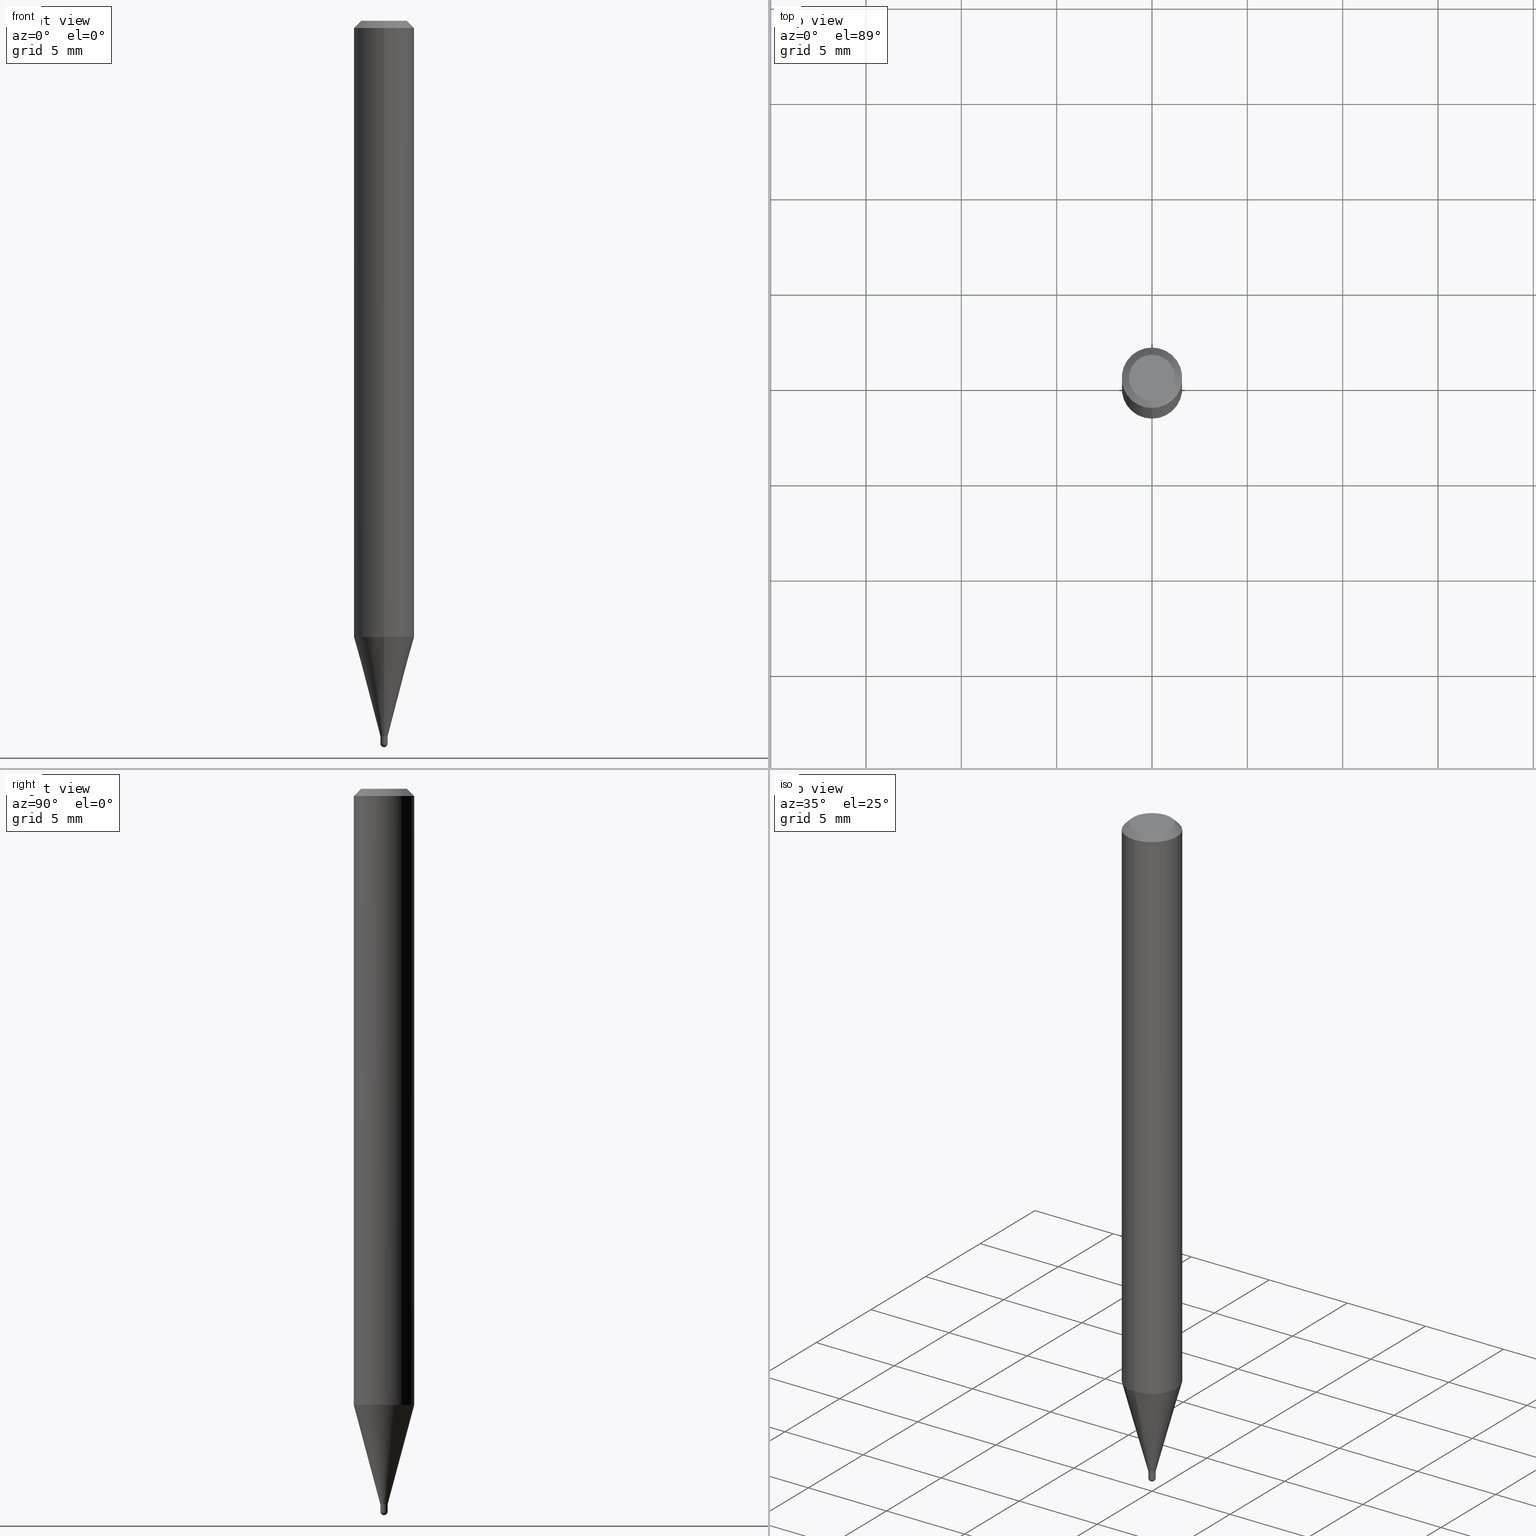
[diagram: canonical four-view strip — front | top / right | iso, engineering-drawing reading convention]
A machine part, canonical four-view strip (front | top / right | iso — engineering-drawing reading convention). The complete STEP part file that produces these views, byte-faithful:
ISO-10303-21;
HEADER;
FILE_DESCRIPTION (( 'STEP AP203' ),
    '1' );
FILE_NAME ('04327.STEP',
    '2024-03-08T18:38:57',
    ( '' ),
    ( '' ),
    'SwSTEP 2.0',
    'SolidWorks 2023',
    '' );
FILE_SCHEMA (( 'CONFIG_CONTROL_DESIGN' ));
ENDSEC;

DATA;
#1 =( CONVERSION_BASED_UNIT ( 'INCH', #356 ) LENGTH_UNIT ( ) NAMED_UNIT ( #144 ) );
#2 = LINE ( 'NONE', #393, #445 ) ;
#3 = AXIS2_PLACEMENT_3D ( 'NONE', #104, #40, #376 ) ;
#4 = ORIENTED_EDGE ( 'NONE', *, *, #425, .T. ) ;
#5 = LINE ( 'NONE', #482, #225 ) ;
#6 = ORIENTED_EDGE ( 'NONE', *, *, #380, .T. ) ;
#7 = PERSON_AND_ORGANIZATION ( #114, #35 ) ;
#8 = CARTESIAN_POINT ( 'NONE',  ( 0.007500000000000001457, -5.237222008264701142E-17, 3.657132581846952633E-31 ) ) ;
#9 = PERSON_AND_ORGANIZATION ( #114, #35 ) ;
#10 = DIRECTION ( 'NONE',  ( -2.445474706583121780E-29, 3.491472889137400899E-15, 1.000000000000000000 ) ) ;
#11 = ADVANCED_FACE ( 'NONE', ( #261 ), #297, .T. ) ;
#12 = CONICAL_SURFACE ( 'NONE', #34, 0.06250000000000000000, 0.7853981633974483900 ) ;
#13 = APPROVAL_ROLE ( '' ) ;
#14 =( NAMED_UNIT ( * ) SI_UNIT ( $, .STERADIAN. ) SOLID_ANGLE_UNIT ( ) );
#15 = DIRECTION ( 'NONE',  ( -2.445474706583121780E-29, 3.491472889137400899E-15, 1.000000000000000000 ) ) ;
#16 = SECURITY_CLASSIFICATION_LEVEL ( 'unclassified' ) ;
#17 = UNCERTAINTY_MEASURE_WITH_UNIT (LENGTH_MEASURE( 1.000000000000000082E-05 ), #1, 'distance_accuracy_value', 'NONE');
#18 = EDGE_LOOP ( 'NONE', ( #73, #417, #224, #446, #347 ) ) ;
#19 = EDGE_CURVE ( 'NONE', #304, #198, #90, .T. ) ;
#20 = CARTESIAN_POINT ( 'NONE',  ( 3.613188878976562681E-29, -5.158651193700511107E-15, -1.477500000000000258 ) ) ;
#21 = ORIENTED_EDGE ( 'NONE', *, *, #465, .F. ) ;
#22 = AXIS2_PLACEMENT_3D ( 'NONE', #100, #253, #293 ) ;
#23 = AXIS2_PLACEMENT_3D ( 'NONE', #30, #463, #296 ) ;
#24 = EDGE_LOOP ( 'NONE', ( #130, #163, #105, #80, #62 ) ) ;
#25 = CARTESIAN_POINT ( 'NONE',  ( 3.649862193231316236E-29, -5.211035898223394834E-15, -1.492499999999999938 ) ) ;
#26 = ORIENTED_EDGE ( 'NONE', *, *, #388, .T. ) ;
#27 = ORIENTED_EDGE ( 'NONE', *, *, #183, .F. ) ;
#28 = APPROVAL_PERSON_ORGANIZATION ( #98, #487, #13 ) ;
#29 = VERTEX_POINT ( 'NONE', #418 ) ;
#30 = CARTESIAN_POINT ( 'NONE',  ( 3.649220818514431555E-29, -5.211954383322755316E-15, -1.492499999999999938 ) ) ;
#31 = DIRECTION ( 'NONE',  ( -6.982962677686265133E-15, -1.000000000000000000, 0.000000000000000000 ) ) ;
#32 = CC_DESIGN_PERSON_AND_ORGANIZATION_ASSIGNMENT ( #58, #362, ( #169 ) ) ;
#33 = LINE ( 'NONE', #508, #218 ) ;
#34 = AXIS2_PLACEMENT_3D ( 'NONE', #510, #194, #474 ) ;
#35 = ORGANIZATION ( 'UNSPECIFIED', 'UNSPECIFIED', '' ) ;
#36 = DIRECTION ( 'NONE',  ( -2.445474706583121780E-29, 3.491472889137400899E-15, 1.000000000000000000 ) ) ;
#37 = ORIENTED_EDGE ( 'NONE', *, *, #465, .T. ) ;
#38 = DIRECTION ( 'NONE',  ( -2.445468806185136597E-29, 3.491481338843145583E-15, 1.000000000000000000 ) ) ;
#39 = EDGE_CURVE ( 'NONE', #466, #398, #55, .T. ) ;
#40 = DIRECTION ( 'NONE',  ( -1.000000000000000000, 6.982962677686265922E-15, -4.883557194083112340E-29 ) ) ;
#41 = ORIENTED_EDGE ( 'NONE', *, *, #153, .T. ) ;
#42 = FACE_OUTER_BOUND ( 'NONE', #24, .T. ) ;
#43 = ORIENTED_EDGE ( 'NONE', *, *, #342, .F. ) ;
#44 = CIRCLE ( 'NONE', #370, 0.06250000000000000000 ) ;
#45 = DIRECTION ( 'NONE',  ( -6.982962677686266711E-15, -1.000000000000000000, 0.000000000000000000 ) ) ;
#46 = VERTEX_POINT ( 'NONE', #219 ) ;
#47 = APPROVAL_ROLE ( '' ) ;
#48 = CARTESIAN_POINT ( 'NONE',  ( -5.237222008261413811E-17, -0.007500000000005628033, -1.477500000000000036 ) ) ;
#49 = EDGE_LOOP ( 'NONE', ( #6, #216, #125, #269 ) ) ;
#50 = DATE_AND_TIME ( #447, #75 ) ;
#51 = EDGE_CURVE ( 'NONE', #86, #387, #65, .T. ) ;
#52 = CARTESIAN_POINT ( 'NONE',  ( 4.440892098500625669E-16, 0.06250000000000000000, -2.182170555710875562E-16 ) ) ;
#53 = DIRECTION ( 'NONE',  ( -2.445468806185136877E-29, 3.491481338843145188E-15, 1.000000000000000000 ) ) ;
#54 = APPROVAL_STATUS ( 'not_yet_approved' ) ;
#55 = CIRCLE ( 'NONE', #443, 0.007500000000000001457 ) ;
#56 = FACE_OUTER_BOUND ( 'NONE', #103, .T. ) ;
#57 = CONICAL_SURFACE ( 'NONE', #299, 0.06250000000000000000, 0.7853981633974483900 ) ;
#58 = PERSON_AND_ORGANIZATION ( #114, #35 ) ;
#59 = CARTESIAN_POINT ( 'NONE',  ( 3.613188878976562121E-29, -5.158651193700510318E-15, -1.477500000000000036 ) ) ;
#60 = EDGE_CURVE ( 'NONE', #387, #439, #496, .T. ) ;
#61 = DIRECTION ( 'NONE',  ( 2.445474706583121780E-29, -3.491472889137400899E-15, -1.000000000000000000 ) ) ;
#62 = ORIENTED_EDGE ( 'NONE', *, *, #331, .F. ) ;
#63 = APPLICATION_CONTEXT ( 'configuration controlled 3d designs of mechanical parts and assemblies' ) ;
#64 = DIRECTION ( 'NONE',  ( -2.445474706583121780E-29, 3.491472889137400899E-15, 1.000000000000000000 ) ) ;
#65 = CIRCLE ( 'NONE', #132, 0.007500000000000469833 ) ;
#66 = CARTESIAN_POINT ( 'NONE',  ( 2.486899575160704889E-16, 0.007499999999995310765, -1.477500000000000036 ) ) ;
#67 = AXIS2_PLACEMENT_3D ( 'NONE', #186, #341, #499 ) ;
#68 = SECURITY_CLASSIFICATION ( '', '', #16 ) ;
#69 = DIRECTION ( 'NONE',  ( -4.937700262164674260E-15, -0.7071067811865632269, 0.7071067811865319186 ) ) ;
#70 = APPLICATION_PROTOCOL_DEFINITION ( 'international standard', 'config_control_design', 1994, #63 ) ;
#71 = EDGE_CURVE ( 'NONE', #150, #439, #315, .T. ) ;
#72 = EDGE_LOOP ( 'NONE', ( #116, #442, #481, #152 ) ) ;
#73 = ORIENTED_EDGE ( 'NONE', *, *, #256, .T. ) ;
#74 = AXIS2_PLACEMENT_3D ( 'NONE', #244, #135, #406 ) ;
#75 = LOCAL_TIME ( 13, 38, 57.00000000000000000, #455 ) ;
#76 = ORIENTED_EDGE ( 'NONE', *, *, #270, .F. ) ;
#77 = APPROVAL ( #54, 'UNSPECIFIED' ) ;
#78 = DIRECTION ( 'NONE',  ( 1.000000000000000000, -6.982962677686266711E-15, 4.876176775795935793E-29 ) ) ;
#79 = CARTESIAN_POINT ( 'NONE',  ( 3.613188878976562681E-29, -5.158651193700511107E-15, -1.477500000000000258 ) ) ;
#80 = ORIENTED_EDGE ( 'NONE', *, *, #325, .T. ) ;
#81 = VECTOR ( 'NONE', #448, 39.37007874015748143 ) ;
#82 = EDGE_CURVE ( 'NONE', #387, #86, #413, .T. ) ;
#83 = CARTESIAN_POINT ( 'NONE',  ( -0.007499999999999999722, -5.131559083000064325E-15, -1.477500000000000036 ) ) ;
#84 = VERTEX_POINT ( 'NONE', #461 ) ;
#85 = DIRECTION ( 'NONE',  ( 4.937700262164548042E-15, 0.7071067811865451302, -0.7071067811865499042 ) ) ;
#86 = VERTEX_POINT ( 'NONE', #66 ) ;
#87 = CARTESIAN_POINT ( 'NONE',  ( 3.613188878976562681E-29, -5.158651193700511107E-15, -1.477500000000000258 ) ) ;
#88 = EDGE_LOOP ( 'NONE', ( #43, #483, #404, #426 ) ) ;
#89 = COORDINATED_UNIVERSAL_TIME_OFFSET ( 5, 0, .BEHIND. ) ;
#90 = CIRCLE ( 'NONE', #434, 0.04749999999999999362 ) ;
#91 = AXIS2_PLACEMENT_3D ( 'NONE', #497, #300, #345 ) ;
#92 = DIRECTION ( 'NONE',  ( -6.982962677686266711E-15, -1.000000000000000000, 0.000000000000000000 ) ) ;
#93 = CC_DESIGN_PERSON_AND_ORGANIZATION_ASSIGNMENT ( #95, #452, ( #134 ) ) ;
#94 = ORIENTED_EDGE ( 'NONE', *, *, #221, .F. ) ;
#95 = PERSON_AND_ORGANIZATION ( #114, #35 ) ;
#96 = CARTESIAN_POINT ( 'NONE',  ( 4.440892098500938748E-16, 0.06249999999999995143, -0.01500000000000028394 ) ) ;
#97 = PLANE ( 'NONE',  #192 ) ;
#98 = PERSON_AND_ORGANIZATION ( #114, #35 ) ;
#99 = EDGE_CURVE ( 'NONE', #205, #439, #379, .T. ) ;
#100 = CARTESIAN_POINT ( 'NONE',  ( 3.649220818514431555E-29, -5.211954383322755316E-15, -1.492499999999999938 ) ) ;
#101 = AXIS2_PLACEMENT_3D ( 'NONE', #464, #147, #257 ) ;
#102 = DIRECTION ( 'NONE',  ( -6.982962677686265922E-15, -1.000000000000000000, 3.483106191921935554E-15 ) ) ;
#103 = EDGE_LOOP ( 'NONE', ( #491, #503 ) ) ;
#104 = CARTESIAN_POINT ( 'NONE',  ( 3.649220818514431555E-29, -5.211954383322755316E-15, -1.492499999999999938 ) ) ;
#105 = ORIENTED_EDGE ( 'NONE', *, *, #39, .T. ) ;
#106 = DIRECTION ( 'NONE',  ( -6.982962677686265133E-15, -1.000000000000000000, 0.000000000000000000 ) ) ;
#107 = VECTOR ( 'NONE', #128, 39.37007874015748143 ) ;
#108 = APPROVAL_PERSON_ORGANIZATION ( #275, #193, #366 ) ;
#109 = ADVANCED_FACE ( 'NONE', ( #220 ), #382, .F. ) ;
#110 = FACE_OUTER_BOUND ( 'NONE', #316, .T. ) ;
#111 = DIRECTION ( 'NONE',  ( -2.445474706583121780E-29, 3.491472889137400899E-15, 1.000000000000000000 ) ) ;
#112 = ADVANCED_FACE ( 'NONE', ( #110 ), #166, .F. ) ;
#113 = CARTESIAN_POINT ( 'NONE',  ( 3.613188878976562121E-29, -5.158651193700510318E-15, -1.477500000000000036 ) ) ;
#114 = PERSON ( 'UNSPECIFIED', 'UNSPECIFIED', 'UNSPECIFIED', ('UNSPECIFIED'), ('UNSPECIFIED'), ('UNSPECIFIED') ) ;
#115 = AXIS2_PLACEMENT_3D ( 'NONE', #87, #276, #360 ) ;
#116 = ORIENTED_EDGE ( 'NONE', *, *, #82, .T. ) ;
#117 = CARTESIAN_POINT ( 'NONE',  ( 5.329070518204423714E-17, 0.007499999999994821573, -1.492499999999999938 ) ) ;
#118 = LINE ( 'NONE', #199, #164 ) ;
#119 = CARTESIAN_POINT ( 'NONE',  ( 5.329070518204697350E-17, 0.007499999999995310765, -1.477500000000000036 ) ) ;
#120 = ORIENTED_EDGE ( 'NONE', *, *, #129, .F. ) ;
#121 = PRODUCT_RELATED_PRODUCT_CATEGORY ( 'detail', '', ( #295 ) ) ;
#122 = CONICAL_SURFACE ( 'NONE', #115, 0.006999999999999999278, 0.7853981633974739252 ) ;
#123 = AXIS2_PLACEMENT_3D ( 'NONE', #333, #488, #458 ) ;
#124 = CARTESIAN_POINT ( 'NONE',  ( 3.649220818514431555E-29, -5.211954383322755316E-15, -1.492499999999999938 ) ) ;
#125 = ORIENTED_EDGE ( 'NONE', *, *, #290, .F. ) ;
#126 = CARTESIAN_POINT ( 'NONE',  ( 4.364351673553919652E-16, 0.06249999999999995143, -0.01500000000000028394 ) ) ;
#127 = VERTEX_POINT ( 'NONE', #83 ) ;
#128 = DIRECTION ( 'NONE',  ( -2.445468806185136877E-29, 3.491481338843145188E-15, 1.000000000000000000 ) ) ;
#129 = EDGE_CURVE ( 'NONE', #86, #207, #318, .T. ) ;
#130 = ORIENTED_EDGE ( 'NONE', *, *, #441, .F. ) ;
#131 = APPLICATION_PROTOCOL_DEFINITION ( 'international standard', 'config_control_design', 1994, #354 ) ;
#132 = AXIS2_PLACEMENT_3D ( 'NONE', #113, #337, #106 ) ;
#133 = AXIS2_PLACEMENT_3D ( 'NONE', #170, #208, #408 ) ;
#134 = PRODUCT_DEFINITION_FORMATION_WITH_SPECIFIED_SOURCE ( 'ANY', '', #295, .NOT_KNOWN. ) ;
#135 = DIRECTION ( 'NONE',  ( -2.445468806185136597E-29, 3.491481338843145583E-15, 1.000000000000000000 ) ) ;
#136 = EDGE_CURVE ( 'NONE', #260, #150, #33, .T. ) ;
#137 = PERSON_AND_ORGANIZATION_ROLE ( 'design_owner' ) ;
#138 = CARTESIAN_POINT ( 'NONE',  ( -0.007500000000000001457, 5.329070518200752429E-17, -3.689201317691179704E-31 ) ) ;
#139 = SHAPE_DEFINITION_REPRESENTATION ( #309, #319 ) ;
#140 = SPHERICAL_SURFACE ( 'NONE', #22, 0.007500000000000063040 ) ;
#141 = AXIS2_PLACEMENT_3D ( 'NONE', #124, #233, #476 ) ;
#142 = CC_DESIGN_APPROVAL ( #487, ( #68 ) ) ;
#143 = EDGE_LOOP ( 'NONE', ( #27, #4, #475, #422 ) ) ;
#144 = DIMENSIONAL_EXPONENTS ( 1.000000000000000000, 0.000000000000000000, 0.000000000000000000, 0.000000000000000000, 0.000000000000000000, 0.000000000000000000, 0.000000000000000000 ) ;
#145 = CARTESIAN_POINT ( 'NONE',  ( -5.237222008264932254E-17, -0.007500000000000333657, 2.618604666853167253E-17 ) ) ;
#146 = SPHERICAL_SURFACE ( 'NONE', #23, 0.007500000000000063040 ) ;
#147 = DIRECTION ( 'NONE',  ( -2.445474706583121780E-29, 3.491472889137400899E-15, 1.000000000000000000 ) ) ;
#148 = ADVANCED_FACE ( 'NONE', ( #314 ), #504, .T. ) ;
#149 = DIRECTION ( 'NONE',  ( 0.000000000000000000, 0.000000000000000000, 1.000000000000000000 ) ) ;
#150 = VERTEX_POINT ( 'NONE', #310 ) ;
#151 = AXIS2_PLACEMENT_3D ( 'NONE', #59, #485, #215 ) ;
#152 = ORIENTED_EDGE ( 'NONE', *, *, #217, .F. ) ;
#153 = EDGE_CURVE ( 'NONE', #198, #355, #472, .T. ) ;
#154 = CYLINDRICAL_SURFACE ( 'NONE', #494, 0.007500000000000333657 ) ;
#155 = DIRECTION ( 'NONE',  ( 1.000000000000000000, -6.982962677686266711E-15, 0.000000000000000000 ) ) ;
#156 = CARTESIAN_POINT ( 'NONE',  ( 3.649862193231316236E-29, -5.211035898223394834E-15, -1.492499999999999938 ) ) ;
#157 = CIRCLE ( 'NONE', #123, 0.007500000000000001457 ) ;
#158 = DIRECTION ( 'NONE',  ( 1.839019923739649619E-15, 0.2588190451025318972, 0.9659258262890650926 ) ) ;
#159 = CARTESIAN_POINT ( 'NONE',  ( 0.000000000000000000, 0.000000000000000000, 0.000000000000000000 ) ) ;
#160 = ADVANCED_FACE ( 'NONE', ( #390 ), #12, .T. ) ;
#161 = ORIENTED_EDGE ( 'NONE', *, *, #82, .F. ) ;
#162 = DIRECTION ( 'NONE',  ( -4.851104656540964275E-15, -0.7071067811865500152, -0.7071067811865450192 ) ) ;
#163 = ORIENTED_EDGE ( 'NONE', *, *, #420, .T. ) ;
#164 = VECTOR ( 'NONE', #229, 39.37007874015748854 ) ;
#165 = LOCAL_TIME ( 13, 38, 57.00000000000000000, #89 ) ;
#166 = PLANE ( 'NONE',  #232 ) ;
#167 = ORIENTED_EDGE ( 'NONE', *, *, #136, .F. ) ;
#168 = DATE_TIME_ROLE ( 'creation_date' ) ;
#169 = PRODUCT_DEFINITION ( 'UNKNOWN', '', #134, #338 ) ;
#170 = CARTESIAN_POINT ( 'NONE',  ( 0.000000000000000000, 0.000000000000000000, 0.000000000000000000 ) ) ;
#171 = ORIENTED_EDGE ( 'NONE', *, *, #99, .T. ) ;
#172 = PERSON_AND_ORGANIZATION ( #114, #35 ) ;
#173 = CYLINDRICAL_SURFACE ( 'NONE', #133, 0.007500000000000001457 ) ;
#174 = DIRECTION ( 'NONE',  ( 2.438088387897960049E-29, -3.491481338843145188E-15, -1.000000000000000000 ) ) ;
#175 = CIRCLE ( 'NONE', #74, 0.007499999999999999722 ) ;
#176 = FACE_OUTER_BOUND ( 'NONE', #407, .T. ) ;
#177 = DATE_AND_TIME ( #374, #358 ) ;
#178 = ORIENTED_EDGE ( 'NONE', *, *, #217, .T. ) ;
#179 = AXIS2_PLACEMENT_3D ( 'NONE', #429, #111, #184 ) ;
#180 = VECTOR ( 'NONE', #15, 39.37007874015748143 ) ;
#181 = LOCAL_TIME ( 13, 38, 57.00000000000000000, #288 ) ;
#182 = ORIENTED_EDGE ( 'NONE', *, *, #221, .T. ) ;
#183 = EDGE_CURVE ( 'NONE', #278, #272, #435, .T. ) ;
#184 = DIRECTION ( 'NONE',  ( -6.982962677686265922E-15, -1.000000000000000000, 3.491472889137400899E-15 ) ) ;
#185 = DIRECTION ( 'NONE',  ( -2.445468806185136597E-29, 3.491481338843145583E-15, 1.000000000000000000 ) ) ;
#186 = CARTESIAN_POINT ( 'NONE',  ( 0.000000000000000000, 0.000000000000000000, 0.000000000000000000 ) ) ;
#187 = ORIENTED_EDGE ( 'NONE', *, *, #301, .F. ) ;
#188 = AXIS2_PLACEMENT_3D ( 'NONE', #421, #381, #423 ) ;
#189 = CARTESIAN_POINT ( 'NONE',  ( 1.601801471686390664E-45, -2.286936927672258869E-31, -6.550063541341908739E-17 ) ) ;
#190 = DIRECTION ( 'NONE',  ( 2.445474706583121500E-29, -3.491472889137400899E-15, -1.000000000000000000 ) ) ;
#191 = CARTESIAN_POINT ( 'NONE',  ( -4.888073874376772901E-17, -0.007000000000005158346, -1.477500000000000258 ) ) ;
#192 = AXIS2_PLACEMENT_3D ( 'NONE', #20, #209, #254 ) ;
#193 = APPROVAL ( #243, 'UNSPECIFIED' ) ;
#194 = DIRECTION ( 'NONE',  ( 2.445474706583121780E-29, -3.491472889137400899E-15, -1.000000000000000000 ) ) ;
#195 = MANIFOLD_SOLID_BREP ( 'Body-Move/Copy2[2]', #239 ) ;
#196 = FACE_OUTER_BOUND ( 'NONE', #49, .T. ) ;
#197 = FACE_OUTER_BOUND ( 'NONE', #322, .T. ) ;
#198 = VERTEX_POINT ( 'NONE', #271 ) ;
#199 = CARTESIAN_POINT ( 'NONE',  ( -5.237222008261413811E-17, -0.007500000000005628033, -1.477500000000000036 ) ) ;
#200 = ADVANCED_FACE ( 'NONE', ( #42 ), #430, .T. ) ;
#201 = ORIENTED_EDGE ( 'NONE', *, *, #19, .T. ) ;
#202 = AXIS2_PLACEMENT_3D ( 'NONE', #159, #308, #480 ) ;
#203 = CC_DESIGN_SECURITY_CLASSIFICATION ( #68, ( #134 ) ) ;
#204 = DIRECTION ( 'NONE',  ( -6.982962677686265922E-15, -1.000000000000000000, 4.370956789862821150E-15 ) ) ;
#205 = VERTEX_POINT ( 'NONE', #191 ) ;
#206 = LINE ( 'NONE', #227, #180 ) ;
#207 = VERTEX_POINT ( 'NONE', #438 ) ;
#208 = DIRECTION ( 'NONE',  ( -2.445468806185136597E-29, 3.491481338843145583E-15, 1.000000000000000000 ) ) ;
#209 = DIRECTION ( 'NONE',  ( -2.445474706583121500E-29, 3.491472889137400899E-15, 1.000000000000000000 ) ) ;
#210 = AXIS2_PLACEMENT_3D ( 'NONE', #235, #38, #78 ) ;
#211 = CIRCLE ( 'NONE', #289, 0.007500000000000001457 ) ;
#212 = CC_DESIGN_PERSON_AND_ORGANIZATION_ASSIGNMENT ( #7, #415, ( #134 ) ) ;
#213 = COORDINATED_UNIVERSAL_TIME_OFFSET ( 5, 0, .BEHIND. ) ;
#214 = FACE_OUTER_BOUND ( 'NONE', #237, .T. ) ;
#215 = DIRECTION ( 'NONE',  ( -6.982962677686265133E-15, -1.000000000000000000, 0.000000000000000000 ) ) ;
#216 = ORIENTED_EDGE ( 'NONE', *, *, #136, .T. ) ;
#217 = EDGE_CURVE ( 'NONE', #387, #29, #118, .T. ) ;
#218 = VECTOR ( 'NONE', #268, 39.37007874015748143 ) ;
#219 = CARTESIAN_POINT ( 'NONE',  ( 0.007499999999999999722, -5.211035898223394834E-15, -1.477500000000000036 ) ) ;
#220 = FACE_OUTER_BOUND ( 'NONE', #437, .T. ) ;
#221 = EDGE_CURVE ( 'NONE', #198, #304, #486, .T. ) ;
#222 = ORIENTED_EDGE ( 'NONE', *, *, #270, .T. ) ;
#223 = DIRECTION ( 'NONE',  ( -6.982962677686265922E-15, -1.000000000000000000, 3.491472889137400899E-15 ) ) ;
#224 = ORIENTED_EDGE ( 'NONE', *, *, #230, .F. ) ;
#225 = VECTOR ( 'NONE', #281, 39.37007874015748143 ) ;
#226 =( GEOMETRIC_REPRESENTATION_CONTEXT ( 3 ) GLOBAL_UNCERTAINTY_ASSIGNED_CONTEXT ( ( #17 ) ) GLOBAL_UNIT_ASSIGNED_CONTEXT ( ( #1, #250, #14 ) ) REPRESENTATION_CONTEXT ( 'NONE', 'WORKASPACE' ) );
#227 = CARTESIAN_POINT ( 'NONE',  ( 5.329070518200987855E-17, 0.007500000000000333657, -2.618604666853167253E-17 ) ) ;
#228 = DIRECTION ( 'NONE',  ( -2.445474706583121780E-29, 3.491472889137400899E-15, 1.000000000000000000 ) ) ;
#229 = DIRECTION ( 'NONE',  ( -1.807323732225379049E-15, -0.2588190451025252359, 0.9659258262890670910 ) ) ;
#230 = EDGE_CURVE ( 'NONE', #46, #127, #298, .T. ) ;
#231 = CARTESIAN_POINT ( 'NONE',  ( 3.611966141623271381E-29, -5.156905457255941467E-15, -1.477000000000000091 ) ) ;
#232 = AXIS2_PLACEMENT_3D ( 'NONE', #436, #190, #395 ) ;
#233 = DIRECTION ( 'NONE',  ( 1.000000000000000000, -7.105427357601001070E-15, 4.926315508542082329E-29 ) ) ;
#234 = ORIENTED_EDGE ( 'NONE', *, *, #511, .F. ) ;
#235 = CARTESIAN_POINT ( 'NONE',  ( 0.000000000000000000, 0.000000000000000000, 0.000000000000000000 ) ) ;
#236 = ADVANCED_FACE ( 'NONE', ( #273 ), #401, .T. ) ;
#237 = EDGE_LOOP ( 'NONE', ( #361, #262, #234, #313 ) ) ;
#238 = LINE ( 'NONE', #8, #107 ) ;
#239 = CLOSED_SHELL ( 'NONE', ( #479, #266, #160, #148, #460, #236, #11, #453, #112, #473, #363, #109 ) ) ;
#240 = AXIS2_PLACEMENT_3D ( 'NONE', #284, #450, #317 ) ;
#241 = ORIENTED_EDGE ( 'NONE', *, *, #71, .F. ) ;
#242 = CIRCLE ( 'NONE', #414, 0.06250000000000000000 ) ;
#243 = APPROVAL_STATUS ( 'not_yet_approved' ) ;
#244 = CARTESIAN_POINT ( 'NONE',  ( 3.613180161138538918E-29, -5.158663678140747361E-15, -1.477500000000000036 ) ) ;
#245 = EDGE_LOOP ( 'NONE', ( #509, #383, #21, #365 ) ) ;
#246 = APPROVAL_DATE_TIME ( #323, #77 ) ;
#247 = FACE_OUTER_BOUND ( 'NONE', #18, .T. ) ;
#248 = APPROVAL_STATUS ( 'not_yet_approved' ) ;
#249 = CC_DESIGN_DATE_AND_TIME_ASSIGNMENT ( #50, #451, ( #68 ) ) ;
#250 =( NAMED_UNIT ( * ) PLANE_ANGLE_UNIT ( ) SI_UNIT ( $, .RADIAN. ) );
#251 = AXIS2_PLACEMENT_3D ( 'NONE', #507, #228, #31 ) ;
#252 = LOCAL_TIME ( 13, 38, 57.00000000000000000, #330 ) ;
#253 = DIRECTION ( 'NONE',  ( 1.000000000000000000, -6.982962677686265922E-15, 4.883557194083112340E-29 ) ) ;
#254 = DIRECTION ( 'NONE',  ( -6.982962677686265922E-15, -1.000000000000000000, 3.491472889137400899E-15 ) ) ;
#255 = ORIENTED_EDGE ( 'NONE', *, *, #60, .F. ) ;
#256 = EDGE_CURVE ( 'NONE', #272, #396, #493, .T. ) ;
#257 = DIRECTION ( 'NONE',  ( -6.982962677686265133E-15, -1.000000000000000000, 0.000000000000000000 ) ) ;
#258 = AXIS2_PLACEMENT_3D ( 'NONE', #267, #440, #391 ) ;
#259 = EDGE_LOOP ( 'NONE', ( #512, #187 ) ) ;
#260 = VERTEX_POINT ( 'NONE', #357 ) ;
#261 = FACE_OUTER_BOUND ( 'NONE', #88, .T. ) ;
#262 = ORIENTED_EDGE ( 'NONE', *, *, #183, .T. ) ;
#263 = CIRCLE ( 'NONE', #350, 0.006999999999999999278 ) ;
#264 = CONICAL_SURFACE ( 'NONE', #151, 0.007500000000000469833, 0.2617993877991575125 ) ;
#265 = CARTESIAN_POINT ( 'NONE',  ( 3.667241147202377873E-29, -5.238599735913759294E-15, -1.500000000000000222 ) ) ;
#266 = ADVANCED_FACE ( 'NONE', ( #196 ), #505, .T. ) ;
#267 = CARTESIAN_POINT ( 'NONE',  ( 1.601801471686390664E-45, -2.286936927672258869E-31, -6.550063541341908739E-17 ) ) ;
#268 = DIRECTION ( 'NONE',  ( 5.024295867788190974E-15, 0.7071067811865681119, 0.7071067811865270336 ) ) ;
#269 = ORIENTED_EDGE ( 'NONE', *, *, #99, .F. ) ;
#270 = EDGE_CURVE ( 'NONE', #304, #84, #2, .T. ) ;
#271 = CARTESIAN_POINT ( 'NONE',  ( 3.840629472727447874E-16, 0.04749999999999999362, -2.313455976474456035E-16 ) ) ;
#272 = VERTEX_POINT ( 'NONE', #117 ) ;
#273 = FACE_OUTER_BOUND ( 'NONE', #457, .T. ) ;
#274 = ORIENTED_EDGE ( 'NONE', *, *, #290, .T. ) ;
#275 = PERSON_AND_ORGANIZATION ( #114, #35 ) ;
#276 = DIRECTION ( 'NONE',  ( -2.445474706583121780E-29, 3.491472889137400899E-15, 1.000000000000000000 ) ) ;
#277 = AXIS2_PLACEMENT_3D ( 'NONE', #156, #471, #397 ) ;
#278 = VERTEX_POINT ( 'NONE', #265 ) ;
#279 = AXIS2_PLACEMENT_3D ( 'NONE', #384, #149, #462 ) ;
#280 = PERSON_AND_ORGANIZATION_ROLE ( 'classification_officer' ) ;
#281 = DIRECTION ( 'NONE',  ( -2.445474706583121780E-29, 3.491472889137400899E-15, 1.000000000000000000 ) ) ;
#282 = CARTESIAN_POINT ( 'NONE',  ( -0.007500000000000001457, -5.131559083000064325E-15, -1.492499999999999938 ) ) ;
#283 = CC_DESIGN_DATE_AND_TIME_ASSIGNMENT ( #410, #168, ( #169 ) ) ;
#284 = CARTESIAN_POINT ( 'NONE',  ( 3.668212059874699521E-31, -5.237209333706124349E-17, -0.01500000000000006710 ) ) ;
#285 = APPROVAL_DATE_TIME ( #286, #193 ) ;
#286 = DATE_AND_TIME ( #328, #252 ) ;
#287 = FACE_OUTER_BOUND ( 'NONE', #259, .T. ) ;
#288 = COORDINATED_UNIVERSAL_TIME_OFFSET ( 5, 0, .BEHIND. ) ;
#289 = AXIS2_PLACEMENT_3D ( 'NONE', #25, #185, #498 ) ;
#290 = EDGE_CURVE ( 'NONE', #439, #150, #427, .T. ) ;
#291 = CARTESIAN_POINT ( 'NONE',  ( 3.668212059874699521E-31, -5.237209333706124349E-17, -0.01500000000000006710 ) ) ;
#292 = ORIENTED_EDGE ( 'NONE', *, *, #388, .F. ) ;
#293 = DIRECTION ( 'NONE',  ( -6.982962677686265922E-15, -1.000000000000000000, 0.000000000000000000 ) ) ;
#294 = ORIENTED_EDGE ( 'NONE', *, *, #71, .T. ) ;
#295 = PRODUCT ( '04327', '04327', '', ( #339 ) ) ;
#296 = DIRECTION ( 'NONE',  ( -6.982962677686265922E-15, -1.000000000000000000, 0.000000000000000000 ) ) ;
#297 = CYLINDRICAL_SURFACE ( 'NONE', #179, 0.06250000000000000000 ) ;
#298 = CIRCLE ( 'NONE', #327, 0.007499999999999999722 ) ;
#299 = AXIS2_PLACEMENT_3D ( 'NONE', #291, #61, #409 ) ;
#300 = DIRECTION ( 'NONE',  ( -2.445474706583121780E-29, 3.491472889137400899E-15, 1.000000000000000000 ) ) ;
#301 = EDGE_CURVE ( 'NONE', #260, #205, #263, .T. ) ;
#302 = CARTESIAN_POINT ( 'NONE',  ( 0.000000000000000000, 0.000000000000000000, 0.000000000000000000 ) ) ;
#303 = EDGE_LOOP ( 'NONE', ( #320, #222, #37, #468 ) ) ;
#304 = VERTEX_POINT ( 'NONE', #364 ) ;
#305 = ORIENTED_EDGE ( 'NONE', *, *, #60, .T. ) ;
#306 = EDGE_CURVE ( 'NONE', #29, #84, #5, .T. ) ;
#307 = AXIS2_PLACEMENT_3D ( 'NONE', #495, #174, #375 ) ;
#308 = DIRECTION ( 'NONE',  ( -2.445474706583121780E-29, 3.491472889137400899E-15, 1.000000000000000000 ) ) ;
#309 = PRODUCT_DEFINITION_SHAPE ( 'NONE', 'NONE',  #169 ) ;
#310 = CARTESIAN_POINT ( 'NONE',  ( 5.329070518204484728E-17, 0.007499999999995016729, -1.477000000000000091 ) ) ;
#311 = DIRECTION ( 'NONE',  ( -2.445474706583121780E-29, 3.491472889137400899E-15, 1.000000000000000000 ) ) ;
#312 = ADVANCED_FACE ( 'NONE', ( #247 ), #173, .T. ) ;
#313 = ORIENTED_EDGE ( 'NONE', *, *, #39, .F. ) ;
#314 = FACE_OUTER_BOUND ( 'NONE', #245, .T. ) ;
#315 = CIRCLE ( 'NONE', #91, 0.007500000000000197481 ) ;
#316 = EDGE_LOOP ( 'NONE', ( #182, #201 ) ) ;
#317 = DIRECTION ( 'NONE',  ( -6.982962677686265922E-15, -1.000000000000000000, 3.483106191921935554E-15 ) ) ;
#318 = LINE ( 'NONE', #119, #385 ) ;
#319 = ADVANCED_BREP_SHAPE_REPRESENTATION ( '04327', ( #369, #195, #279 ), #226 ) ;
#320 = ORIENTED_EDGE ( 'NONE', *, *, #19, .F. ) ;
#321 = CARTESIAN_POINT ( 'NONE',  ( 3.613188878976562681E-29, -5.158651193700511107E-15, -1.477500000000000258 ) ) ;
#322 = EDGE_LOOP ( 'NONE', ( #76, #94, #41, #334 ) ) ;
#323 = DATE_AND_TIME ( #372, #181 ) ;
#324 = LINE ( 'NONE', #52, #81 ) ;
#325 = EDGE_CURVE ( 'NONE', #398, #46, #238, .T. ) ;
#326 = FACE_OUTER_BOUND ( 'NONE', #72, .T. ) ;
#327 = AXIS2_PLACEMENT_3D ( 'NONE', #431, #351, #349 ) ;
#328 = CALENDAR_DATE ( 2024, 8, 3 ) ;
#329 = LINE ( 'NONE', #138, #371 ) ;
#330 = COORDINATED_UNIVERSAL_TIME_OFFSET ( 5, 0, .BEHIND. ) ;
#331 = EDGE_CURVE ( 'NONE', #127, #46, #175, .T. ) ;
#332 = CALENDAR_DATE ( 2024, 8, 3 ) ;
#333 = CARTESIAN_POINT ( 'NONE',  ( 3.649862193231316236E-29, -5.211035898223394834E-15, -1.492499999999999938 ) ) ;
#334 = ORIENTED_EDGE ( 'NONE', *, *, #394, .T. ) ;
#335 = CIRCLE ( 'NONE', #400, 0.006999999999999999278 ) ;
#336 = CIRCLE ( 'NONE', #188, 0.06250000000000000000 ) ;
#337 = DIRECTION ( 'NONE',  ( -2.445474706583121780E-29, 3.491472889137400899E-15, 1.000000000000000000 ) ) ;
#338 = DESIGN_CONTEXT ( 'detailed design', #354, 'design' ) ;
#339 = MECHANICAL_CONTEXT ( 'NONE', #63, 'mechanical' ) ;
#340 = DIRECTION ( 'NONE',  ( -2.445474706583121780E-29, 3.491472889137400899E-15, 1.000000000000000000 ) ) ;
#341 = DIRECTION ( 'NONE',  ( -2.445474706583121780E-29, 3.491472889137400899E-15, 1.000000000000000000 ) ) ;
#342 = EDGE_CURVE ( 'NONE', #207, #355, #324, .T. ) ;
#343 = VECTOR ( 'NONE', #69, 39.37007874015748143 ) ;
#344 =( LENGTH_UNIT ( ) NAMED_UNIT ( * ) SI_UNIT ( $, .METRE. ) );
#345 = DIRECTION ( 'NONE',  ( -6.982962677686265922E-15, -1.000000000000000000, 0.000000000000000000 ) ) ;
#346 = ORIENTED_EDGE ( 'NONE', *, *, #348, .F. ) ;
#347 = ORIENTED_EDGE ( 'NONE', *, *, #511, .T. ) ;
#348 = EDGE_CURVE ( 'NONE', #207, #29, #44, .T. ) ;
#349 = DIRECTION ( 'NONE',  ( 1.000000000000000000, -6.982962677686268288E-15, 0.000000000000000000 ) ) ;
#350 = AXIS2_PLACEMENT_3D ( 'NONE', #399, #484, #45 ) ;
#351 = DIRECTION ( 'NONE',  ( -2.445468806185136597E-29, 3.491481338843145583E-15, 1.000000000000000000 ) ) ;
#352 = DIRECTION ( 'NONE',  ( -6.982962677686265922E-15, -1.000000000000000000, 0.000000000000000000 ) ) ;
#353 = DIRECTION ( 'NONE',  ( -6.982962677686266711E-15, -1.000000000000000000, 0.000000000000000000 ) ) ;
#354 = APPLICATION_CONTEXT ( 'configuration controlled 3d designs of mechanical parts and assemblies' ) ;
#355 = VERTEX_POINT ( 'NONE', #96 ) ;
#356 = LENGTH_MEASURE_WITH_UNIT ( LENGTH_MEASURE( 0.02539999999999999897 ), #344 );
#357 = CARTESIAN_POINT ( 'NONE',  ( 5.151434834264408371E-17, 0.006999999999994841078, -1.477500000000000258 ) ) ;
#358 = LOCAL_TIME ( 13, 38, 57.00000000000000000, #213 ) ;
#359 = ORIENTED_EDGE ( 'NONE', *, *, #51, .T. ) ;
#360 = DIRECTION ( 'NONE',  ( -6.982962677686266711E-15, -1.000000000000000000, 0.000000000000000000 ) ) ;
#361 = ORIENTED_EDGE ( 'NONE', *, *, #425, .F. ) ;
#362 = PERSON_AND_ORGANIZATION_ROLE ( 'creator' ) ;
#363 = ADVANCED_FACE ( 'NONE', ( #176 ), #122, .T. ) ;
#364 = CARTESIAN_POINT ( 'NONE',  ( -3.773273898774340269E-16, -0.04749999999999999362, 1.003443268206074287E-16 ) ) ;
#365 = ORIENTED_EDGE ( 'NONE', *, *, #306, .F. ) ;
#366 = APPROVAL_ROLE ( '' ) ;
#367 = CARTESIAN_POINT ( 'NONE',  ( 3.111223907028978359E-29, -4.441981711847484766E-15, -1.272237205583720110 ) ) ;
#368 = PLANE ( 'NONE',  #307 ) ;
#369 = MANIFOLD_SOLID_BREP ( 'Body-Move/Copy2[1]', #492 ) ;
#370 = AXIS2_PLACEMENT_3D ( 'NONE', #367, #10, #204 ) ;
#371 = VECTOR ( 'NONE', #53, 39.37007874015748143 ) ;
#372 = CALENDAR_DATE ( 2024, 8, 3 ) ;
#373 = CC_DESIGN_PERSON_AND_ORGANIZATION_ASSIGNMENT ( #405, #137, ( #295 ) ) ;
#374 = CALENDAR_DATE ( 2024, 8, 3 ) ;
#375 = DIRECTION ( 'NONE',  ( -1.000000000000000000, 6.982962677686265922E-15, -4.876176775795935793E-29 ) ) ;
#376 = DIRECTION ( 'NONE',  ( -6.982962677686265922E-15, -1.000000000000000000, 0.000000000000000000 ) ) ;
#377 = ORIENTED_EDGE ( 'NONE', *, *, #301, .T. ) ;
#378 = VECTOR ( 'NONE', #85, 39.37007874015748143 ) ;
#379 = LINE ( 'NONE', #501, #343 ) ;
#380 = EDGE_CURVE ( 'NONE', #205, #260, #335, .T. ) ;
#381 = DIRECTION ( 'NONE',  ( -2.445474706583121780E-29, 3.491472889137400899E-15, 1.000000000000000000 ) ) ;
#382 = CYLINDRICAL_SURFACE ( 'NONE', #67, 0.007500000000000333657 ) ;
#383 = ORIENTED_EDGE ( 'NONE', *, *, #342, .T. ) ;
#384 = CARTESIAN_POINT ( 'NONE',  ( 0.000000000000000000, 0.000000000000000000, 0.000000000000000000 ) ) ;
#385 = VECTOR ( 'NONE', #158, 39.37007874015748854 ) ;
#386 = CC_DESIGN_APPROVAL ( #77, ( #169 ) ) ;
#387 = VERTEX_POINT ( 'NONE', #48 ) ;
#388 = EDGE_CURVE ( 'NONE', #86, #150, #206, .T. ) ;
#389 = FACE_OUTER_BOUND ( 'NONE', #478, .T. ) ;
#390 = FACE_OUTER_BOUND ( 'NONE', #303, .T. ) ;
#391 = DIRECTION ( 'NONE',  ( -6.982962677686266711E-15, -1.000000000000000000, 3.491472889137400899E-15 ) ) ;
#392 = AXIS2_PLACEMENT_3D ( 'NONE', #79, #311, #353 ) ;
#393 = CARTESIAN_POINT ( 'NONE',  ( -4.287811248607203282E-16, -0.06250000000000005551, -0.01499999999999984852 ) ) ;
#394 = EDGE_CURVE ( 'NONE', #355, #84, #469, .T. ) ;
#395 = DIRECTION ( 'NONE',  ( 6.982962677686265922E-15, 1.000000000000000000, -3.491472889137400899E-15 ) ) ;
#396 = VERTEX_POINT ( 'NONE', #282 ) ;
#397 = DIRECTION ( 'NONE',  ( 1.000000000000000000, -6.982962677686266711E-15, 0.000000000000000000 ) ) ;
#398 = VERTEX_POINT ( 'NONE', #412 ) ;
#399 = CARTESIAN_POINT ( 'NONE',  ( 3.613188878976562681E-29, -5.158651193700511107E-15, -1.477500000000000258 ) ) ;
#400 = AXIS2_PLACEMENT_3D ( 'NONE', #321, #444, #92 ) ;
#401 = CONICAL_SURFACE ( 'NONE', #251, 0.007500000000000469833, 0.2617993877991575125 ) ;
#402 = APPROVAL_PERSON_ORGANIZATION ( #9, #77, #47 ) ;
#403 = ADVANCED_FACE ( 'NONE', ( #214 ), #140, .T. ) ;
#404 = ORIENTED_EDGE ( 'NONE', *, *, #306, .T. ) ;
#405 = PERSON_AND_ORGANIZATION ( #114, #35 ) ;
#406 = DIRECTION ( 'NONE',  ( 1.000000000000000000, -6.982962677686268288E-15, 0.000000000000000000 ) ) ;
#407 = EDGE_LOOP ( 'NONE', ( #167, #377, #171, #241 ) ) ;
#408 = DIRECTION ( 'NONE',  ( 1.000000000000000000, -6.982962677686266711E-15, 4.876176775795935793E-29 ) ) ;
#409 = DIRECTION ( 'NONE',  ( 6.982962677686265922E-15, 1.000000000000000000, -3.483106191921935554E-15 ) ) ;
#410 = DATE_AND_TIME ( #332, #165 ) ;
#411 = ADVANCED_FACE ( 'NONE', ( #56 ), #368, .F. ) ;
#412 = CARTESIAN_POINT ( 'NONE',  ( 0.007500000000000001457, -5.237222008264718177E-15, -1.492499999999999938 ) ) ;
#413 = CIRCLE ( 'NONE', #101, 0.007500000000000469833 ) ;
#414 = AXIS2_PLACEMENT_3D ( 'NONE', #456, #416, #102 ) ;
#415 = PERSON_AND_ORGANIZATION_ROLE ( 'design_supplier' ) ;
#416 = DIRECTION ( 'NONE',  ( -2.445474706583121780E-29, 3.491472889137400899E-15, 1.000000000000000000 ) ) ;
#417 = ORIENTED_EDGE ( 'NONE', *, *, #441, .T. ) ;
#418 = CARTESIAN_POINT ( 'NONE',  ( -4.364351673553606080E-16, -0.06250000000000444089, -1.272237205583719888 ) ) ;
#419 = VECTOR ( 'NONE', #459, 39.37007874015748143 ) ;
#420 = EDGE_CURVE ( 'NONE', #396, #466, #157, .T. ) ;
#421 = CARTESIAN_POINT ( 'NONE',  ( 3.111223907028978359E-29, -4.441981711847484766E-15, -1.272237205583720110 ) ) ;
#422 = ORIENTED_EDGE ( 'NONE', *, *, #256, .F. ) ;
#423 = DIRECTION ( 'NONE',  ( -6.982962677686265922E-15, -1.000000000000000000, 4.370956789862821150E-15 ) ) ;
#424 = DIRECTION ( 'NONE',  ( -6.982962677686266711E-15, -1.000000000000000000, 3.491472889137400899E-15 ) ) ;
#425 = EDGE_CURVE ( 'NONE', #278, #466, #470, .T. ) ;
#426 = ORIENTED_EDGE ( 'NONE', *, *, #394, .F. ) ;
#427 = CIRCLE ( 'NONE', #454, 0.007500000000000197481 ) ;
#428 = FACE_OUTER_BOUND ( 'NONE', #143, .T. ) ;
#429 = CARTESIAN_POINT ( 'NONE',  ( 0.000000000000000000, 0.000000000000000000, 0.000000000000000000 ) ) ;
#430 = CYLINDRICAL_SURFACE ( 'NONE', #210, 0.007500000000000001457 ) ;
#431 = CARTESIAN_POINT ( 'NONE',  ( 3.613180161138538918E-29, -5.158663678140747361E-15, -1.477500000000000036 ) ) ;
#432 = ORIENTED_EDGE ( 'NONE', *, *, #51, .F. ) ;
#433 = CC_DESIGN_PERSON_AND_ORGANIZATION_ASSIGNMENT ( #172, #280, ( #68 ) ) ;
#434 = AXIS2_PLACEMENT_3D ( 'NONE', #189, #340, #424 ) ;
#435 = CIRCLE ( 'NONE', #141, 0.007500000000000063040 ) ;
#436 = CARTESIAN_POINT ( 'NONE',  ( 3.316907271900976096E-16, 0.04749999999999999362, -1.985952799407360598E-16 ) ) ;
#437 = EDGE_LOOP ( 'NONE', ( #292, #161, #305, #274 ) ) ;
#438 = CARTESIAN_POINT ( 'NONE',  ( 4.440892098500935790E-16, 0.06249999999999555911, -1.272237205583720332 ) ) ;
#439 = VERTEX_POINT ( 'NONE', #490 ) ;
#440 = DIRECTION ( 'NONE',  ( -2.445474706583121780E-29, 3.491472889137400899E-15, 1.000000000000000000 ) ) ;
#441 = EDGE_CURVE ( 'NONE', #396, #127, #329, .T. ) ;
#442 = ORIENTED_EDGE ( 'NONE', *, *, #129, .T. ) ;
#443 = AXIS2_PLACEMENT_3D ( 'NONE', #502, #467, #155 ) ;
#444 = DIRECTION ( 'NONE',  ( -2.445474706583121780E-29, 3.491472889137400899E-15, 1.000000000000000000 ) ) ;
#445 = VECTOR ( 'NONE', #162, 39.37007874015748143 ) ;
#446 = ORIENTED_EDGE ( 'NONE', *, *, #325, .F. ) ;
#447 = CALENDAR_DATE ( 2024, 8, 3 ) ;
#448 = DIRECTION ( 'NONE',  ( -2.445474706583121780E-29, 3.491472889137400899E-15, 1.000000000000000000 ) ) ;
#449 = CARTESIAN_POINT ( 'NONE',  ( -5.237222008261072382E-17, -0.007500000000005242924, -1.492499999999999938 ) ) ;
#450 = DIRECTION ( 'NONE',  ( -2.445474706583121780E-29, 3.491472889137400899E-15, 1.000000000000000000 ) ) ;
#451 = DATE_TIME_ROLE ( 'classification_date' ) ;
#452 = PERSON_AND_ORGANIZATION_ROLE ( 'creator' ) ;
#453 = ADVANCED_FACE ( 'NONE', ( #197 ), #57, .T. ) ;
#454 = AXIS2_PLACEMENT_3D ( 'NONE', #231, #36, #352 ) ;
#455 = COORDINATED_UNIVERSAL_TIME_OFFSET ( 5, 0, .BEHIND. ) ;
#456 = CARTESIAN_POINT ( 'NONE',  ( 3.668212059874699521E-31, -5.237209333706124349E-17, -0.01500000000000006710 ) ) ;
#457 = EDGE_LOOP ( 'NONE', ( #120, #359, #178, #346 ) ) ;
#458 = DIRECTION ( 'NONE',  ( 1.000000000000000000, -6.982962677686266711E-15, 0.000000000000000000 ) ) ;
#459 = DIRECTION ( 'NONE',  ( -2.445474706583121780E-29, 3.491472889137400899E-15, 1.000000000000000000 ) ) ;
#460 = ADVANCED_FACE ( 'NONE', ( #326 ), #264, .T. ) ;
#461 = CARTESIAN_POINT ( 'NONE',  ( -4.364351673553912750E-16, -0.06250000000000005551, -0.01499999999999984852 ) ) ;
#462 = DIRECTION ( 'NONE',  ( 1.000000000000000000, 0.000000000000000000, 0.000000000000000000 ) ) ;
#463 = DIRECTION ( 'NONE',  ( 1.000000000000000000, -6.982962677686265922E-15, 4.883557194083112340E-29 ) ) ;
#464 = CARTESIAN_POINT ( 'NONE',  ( 3.613188878976562121E-29, -5.158651193700510318E-15, -1.477500000000000036 ) ) ;
#465 = EDGE_CURVE ( 'NONE', #84, #355, #242, .T. ) ;
#466 = VERTEX_POINT ( 'NONE', #449 ) ;
#467 = DIRECTION ( 'NONE',  ( -2.445468806185136597E-29, 3.491481338843145583E-15, 1.000000000000000000 ) ) ;
#468 = ORIENTED_EDGE ( 'NONE', *, *, #153, .F. ) ;
#469 = CIRCLE ( 'NONE', #240, 0.06250000000000000000 ) ;
#470 = CIRCLE ( 'NONE', #3, 0.007500000000000063040 ) ;
#471 = DIRECTION ( 'NONE',  ( -2.445468806185136597E-29, 3.491481338843145583E-15, 1.000000000000000000 ) ) ;
#472 = LINE ( 'NONE', #126, #378 ) ;
#473 = ADVANCED_FACE ( 'NONE', ( #287 ), #97, .F. ) ;
#474 = DIRECTION ( 'NONE',  ( 6.982962677686265922E-15, 1.000000000000000000, -3.483106191921935554E-15 ) ) ;
#475 = ORIENTED_EDGE ( 'NONE', *, *, #420, .F. ) ;
#476 = DIRECTION ( 'NONE',  ( 7.105427357601001070E-15, 1.000000000000000000, 0.000000000000000000 ) ) ;
#477 = CC_DESIGN_APPROVAL ( #193, ( #134 ) ) ;
#478 = EDGE_LOOP ( 'NONE', ( #432, #26, #294, #255 ) ) ;
#479 = ADVANCED_FACE ( 'NONE', ( #389 ), #154, .F. ) ;
#480 = DIRECTION ( 'NONE',  ( -6.982962677686265922E-15, -1.000000000000000000, 3.491472889137400899E-15 ) ) ;
#481 = ORIENTED_EDGE ( 'NONE', *, *, #506, .F. ) ;
#482 = CARTESIAN_POINT ( 'NONE',  ( -4.364351673553916201E-16, -0.06250000000000000000, 2.182170555710875562E-16 ) ) ;
#483 = ORIENTED_EDGE ( 'NONE', *, *, #348, .T. ) ;
#484 = DIRECTION ( 'NONE',  ( -2.445474706583121780E-29, 3.491472889137400899E-15, 1.000000000000000000 ) ) ;
#485 = DIRECTION ( 'NONE',  ( -2.445474706583121780E-29, 3.491472889137400899E-15, 1.000000000000000000 ) ) ;
#486 = CIRCLE ( 'NONE', #258, 0.04749999999999999362 ) ;
#487 = APPROVAL ( #248, 'UNSPECIFIED' ) ;
#488 = DIRECTION ( 'NONE',  ( -2.445468806185136597E-29, 3.491481338843145583E-15, 1.000000000000000000 ) ) ;
#489 = APPROVAL_DATE_TIME ( #177, #487 ) ;
#490 = CARTESIAN_POINT ( 'NONE',  ( -5.237222008261242480E-17, -0.007500000000005378233, -1.477000000000000091 ) ) ;
#491 = ORIENTED_EDGE ( 'NONE', *, *, #230, .T. ) ;
#492 = CLOSED_SHELL ( 'NONE', ( #312, #403, #411, #500, #200 ) ) ;
#493 = CIRCLE ( 'NONE', #277, 0.007500000000000001457 ) ;
#494 = AXIS2_PLACEMENT_3D ( 'NONE', #302, #64, #223 ) ;
#495 = CARTESIAN_POINT ( 'NONE',  ( 5.237222008268312646E-17, 0.007499999999994841522, -1.477500000000000036 ) ) ;
#496 = LINE ( 'NONE', #145, #419 ) ;
#497 = CARTESIAN_POINT ( 'NONE',  ( 3.611966141623271381E-29, -5.156905457255941467E-15, -1.477000000000000091 ) ) ;
#498 = DIRECTION ( 'NONE',  ( 1.000000000000000000, -6.982962677686266711E-15, 0.000000000000000000 ) ) ;
#499 = DIRECTION ( 'NONE',  ( -6.982962677686265922E-15, -1.000000000000000000, 3.491472889137400899E-15 ) ) ;
#500 = ADVANCED_FACE ( 'NONE', ( #428 ), #146, .T. ) ;
#501 = CARTESIAN_POINT ( 'NONE',  ( -4.888073874376772901E-17, -0.007000000000005158346, -1.477500000000000258 ) ) ;
#502 = CARTESIAN_POINT ( 'NONE',  ( 3.649862193231316236E-29, -5.211035898223394834E-15, -1.492499999999999938 ) ) ;
#503 = ORIENTED_EDGE ( 'NONE', *, *, #331, .T. ) ;
#504 = CYLINDRICAL_SURFACE ( 'NONE', #202, 0.06250000000000000000 ) ;
#505 = CONICAL_SURFACE ( 'NONE', #392, 0.006999999999999999278, 0.7853981633974739252 ) ;
#506 = EDGE_CURVE ( 'NONE', #29, #207, #336, .T. ) ;
#507 = CARTESIAN_POINT ( 'NONE',  ( 3.613188878976562121E-29, -5.158651193700510318E-15, -1.477500000000000036 ) ) ;
#508 = CARTESIAN_POINT ( 'NONE',  ( 4.973799150324313525E-17, 0.006999999999994841078, -1.477500000000000258 ) ) ;
#509 = ORIENTED_EDGE ( 'NONE', *, *, #506, .T. ) ;
#510 = CARTESIAN_POINT ( 'NONE',  ( 3.668212059874699521E-31, -5.237209333706124349E-17, -0.01500000000000006710 ) ) ;
#511 = EDGE_CURVE ( 'NONE', #398, #272, #211, .T. ) ;
#512 = ORIENTED_EDGE ( 'NONE', *, *, #380, .F. ) ;
ENDSEC;
END-ISO-10303-21;
